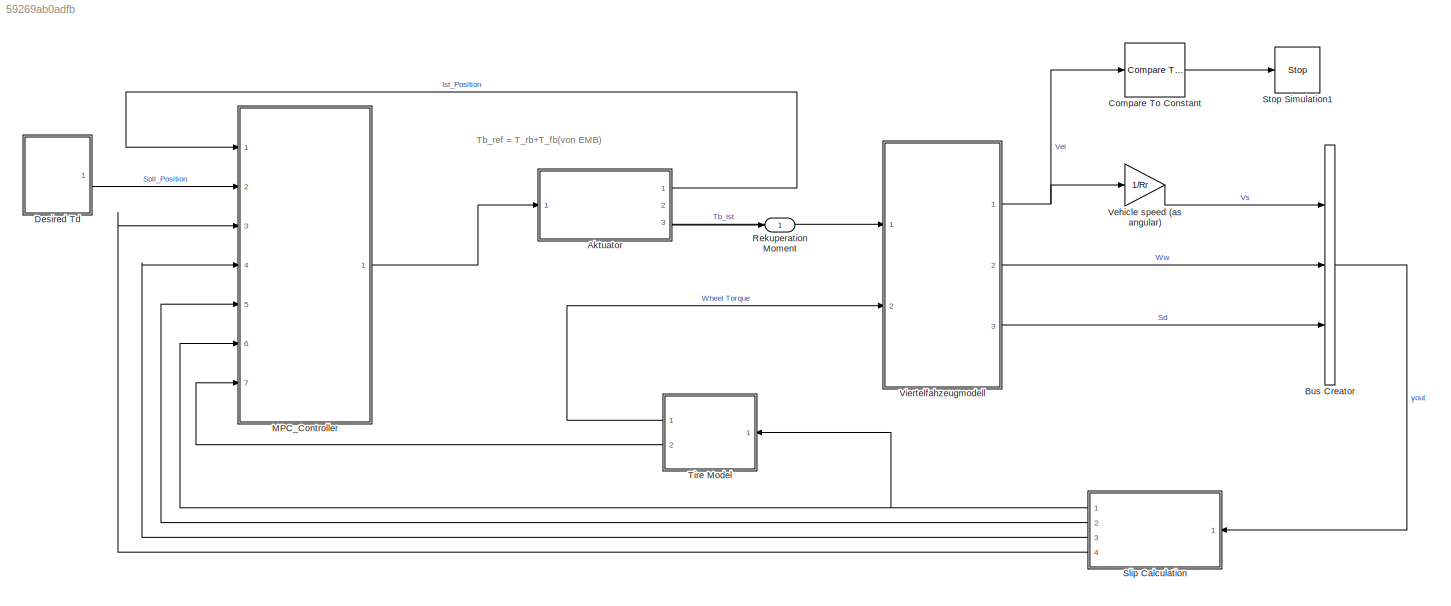
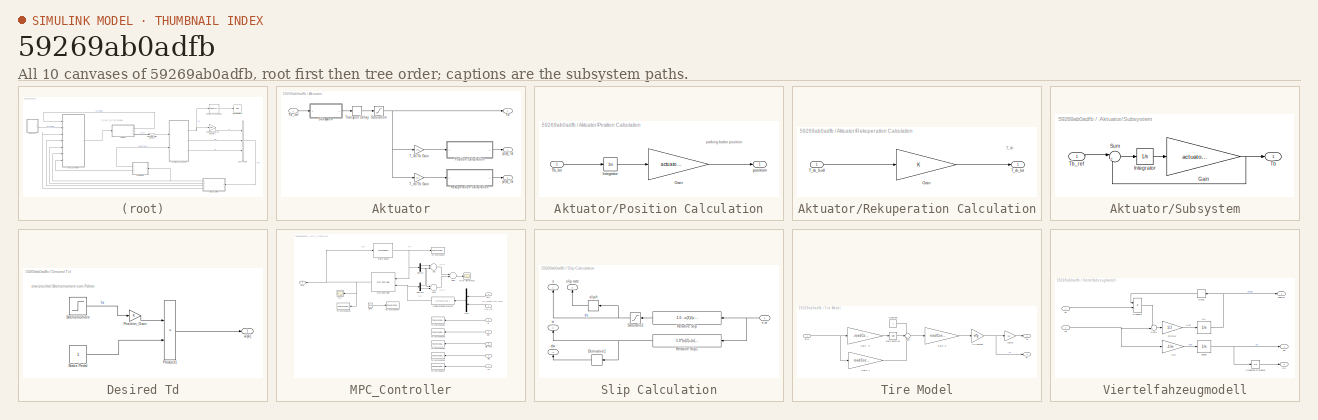
[diagram: thumbnail index - all 10 canvases of the model, root first then tree order]
MODEL slx_59269ab0adfb
KIND model
CONFIG AbsTol = auto
CONFIG FixedStep = 0.001
CONFIG MaxStep = auto
CONFIG MinStep = auto
CONFIG PostLoadFcn = , if any(exist('dsrtsu_mdlpostloadfcn', 'file') == [2, 3, 6]), try dsrtsu_mdlpostloadfcn('Execute', bdroot); catch fprintf('Error in PostLoadFcn (dsrtsu_mdlpostloadfcn) for model "%s":\n %s\n', bdroot, lasterr); end, end, \n
CONFIG RelTol = 1e-3
CONFIG SampleTimeConstraint = Unconstrained
CONFIG Solver = ode1
CONFIG SolverMode = Auto
CONFIG SolverName = ode1
CONFIG StartTime = 0.0
CONFIG StopTime = Inf
BLOCK [SubSystem] Aktuator
  MinAlgLoopOccurrences = on
  Ports = [1, 3]
  RequestExecContextInheritance = off
  TreatAsAtomicUnit = on
  Variant = off
BLOCK [SubSystem] Aktuator/Position Calculation
  Ports = [1, 1]
  RequestExecContextInheritance = off
  Variant = off
BLOCK [Outport] Aktuator/Position Calculation/ positioin
  IconDisplay = Port number
BLOCK [Gain] Aktuator/Position Calculation/Gain
  Gain = actuatorPole
  OutDataTypeStr = Inherit: Inherit via internal rule
  ParamDataTypeStr = Inherit: Inherit via internal rule
  SaturateOnIntegerOverflow = off
BLOCK [Integrator] Aktuator/Position Calculation/Integrator
  Ports = [1, 1]
BLOCK [Inport] Aktuator/Position Calculation/Tb_Ist
  IconDisplay = Port number
BLOCK [SubSystem] Aktuator/Rekuperation Calculation
  Ports = [1, 1]
  RequestExecContextInheritance = off
  Variant = off
BLOCK [Outport] Aktuator/Rekuperation Calculation/ T_rb_Ist
  IconDisplay = Port number
BLOCK [Gain] Aktuator/Rekuperation Calculation/Gain
  OutDataTypeStr = Inherit: Inherit via internal rule
  ParamDataTypeStr = Inherit: Inherit via internal rule
  SaturateOnIntegerOverflow = off
BLOCK [Inport] Aktuator/Rekuperation Calculation/T_rb_Soll
  IconDisplay = Port number
BLOCK [Saturate] Aktuator/Saturation
  InputPortMap = u0
  LowerLimit = 0
  Ports = [1, 1]
  UpperLimit = actuatorSat
BLOCK [SubSystem] Aktuator/Subsystem
  Ports = [1, 1]
  RequestExecContextInheritance = off
  Variant = off
BLOCK [Gain] Aktuator/Subsystem/Gain
  Gain = actuatorPole
  OutDataTypeStr = Inherit: Inherit via internal rule
  ParamDataTypeStr = Inherit: Inherit via internal rule
  SaturateOnIntegerOverflow = off
BLOCK [Integrator] Aktuator/Subsystem/Integrator
  Ports = [1, 1]
BLOCK [Sum] Aktuator/Subsystem/Sum
  IconShape = round
  InputSameDT = off
  Inputs = |+-
  OutDataTypeStr = Inherit: Inherit via internal rule
  Ports = [2, 1]
  SaturateOnIntegerOverflow = off
BLOCK [Outport] Aktuator/Subsystem/Tb
  IconDisplay = Port number
BLOCK [Inport] Aktuator/Subsystem/Tb_ref
  IconDisplay = Port number
BLOCK [Gain] Aktuator/T_fb//Tb Gain
  Gain = 0.8
  OutDataTypeStr = Inherit: Inherit via internal rule
  ParamDataTypeStr = Inherit: Inherit via internal rule
  SaturateOnIntegerOverflow = off
BLOCK [Gain] Aktuator/T_rb//Tb Gain
  Gain = 0.2
  OutDataTypeStr = Inherit: Inherit via internal rule
  ParamDataTypeStr = Inherit: Inherit via internal rule
  SaturateOnIntegerOverflow = off
BLOCK [Outport] Aktuator/Tb
  IconDisplay = Port number
  Port = 2
BLOCK [Inport] Aktuator/Tb_ref
  IconDisplay = Port number
BLOCK [TransportDelay] Aktuator/Transport Delay
  BufferSize = 10240
  DelayTime = actuatorDelay
  Ports = [1, 1]
BLOCK [Outport] Aktuator/y1(k)_Ist
  IconDisplay = Port number
BLOCK [Outport] Aktuator/y2(k)_Ist
  IconDisplay = Port number
  Port = 3
BLOCK [BusCreator] Bus Creator
  DisplayOption = bar
  InheritFromInputs = on
  Inputs = 3
  Ports = [3, 1]
BLOCK [Reference] Compare To Constant  REF=simulink/Logic and Bit
Operations/Compare
To Constant
  Ports = [1, 1]
  SourceBlock = simulink/Logic and Bit\nOperations/Compare\nTo Constant
  SourceType = Compare To Constant
BLOCK [SubSystem] Desired Td
  Ports = [0, 1]
  RequestExecContextInheritance = off
  Variant = off
BLOCK [Constant] Desired Td/Brake Pedal
  OutMax = [1]
  OutMin = [0]
BLOCK [Step] Desired Td/Bremsmoment
  After = Td
  SampleTime = 0
BLOCK [Gain] Desired Td/Position_Gain
  OutDataTypeStr = Inherit: Inherit via internal rule
  ParamDataTypeStr = Inherit: Inherit via internal rule
  SaturateOnIntegerOverflow = off
BLOCK [Product] Desired Td/Product1
  InputSameDT = off
  Ports = [2, 1]
  RndMeth = Floor
BLOCK [Outport] Desired Td/w(k)
  IconDisplay = Port number
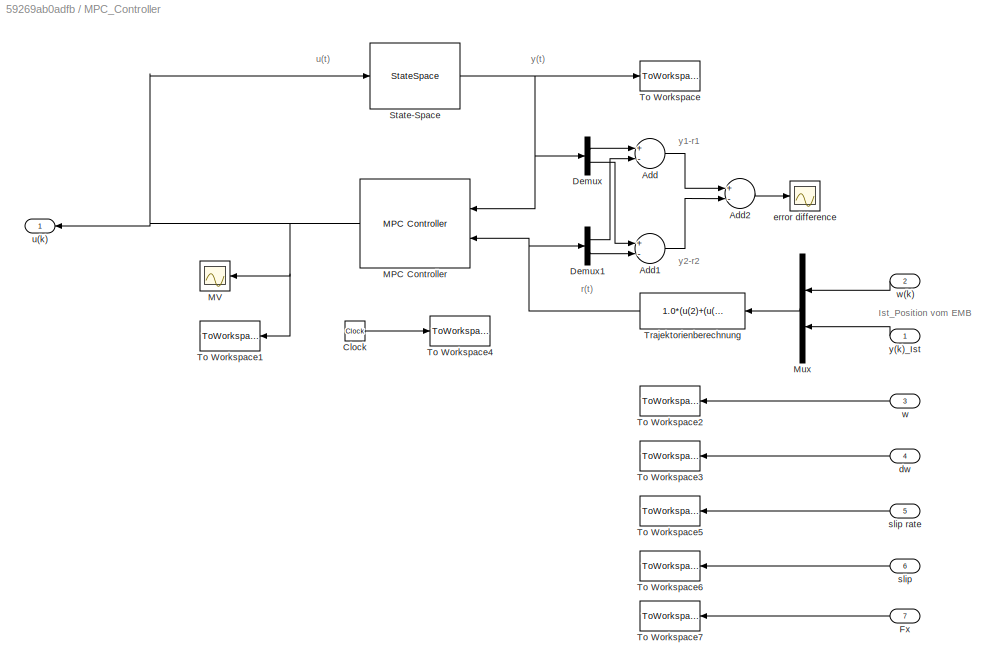
BLOCK [SubSystem] MPC_Controller
  Ports = [7, 1]
  RequestExecContextInheritance = off
  Variant = off
BLOCK [Sum] MPC_Controller/Add
  InputSameDT = off
  Inputs = +-
  OutDataTypeStr = Inherit: Inherit via internal rule
  Ports = [2, 1]
  SaturateOnIntegerOverflow = off
BLOCK [Sum] MPC_Controller/Add1
  InputSameDT = off
  Inputs = +-
  OutDataTypeStr = Inherit: Inherit via internal rule
  Ports = [2, 1]
  SaturateOnIntegerOverflow = off
BLOCK [Sum] MPC_Controller/Add2
  InputSameDT = off
  Inputs = +-
  OutDataTypeStr = Inherit: Inherit via internal rule
  Ports = [2, 1]
  SaturateOnIntegerOverflow = off
BLOCK [Clock] MPC_Controller/Clock
BLOCK [Demux] MPC_Controller/Demux
  DisplayOption = bar
  Outputs = 2
  Ports = [1, 2]
BLOCK [Demux] MPC_Controller/Demux1
  DisplayOption = bar
  Outputs = 2
  Ports = [1, 2]
BLOCK [Inport] MPC_Controller/Fx
  IconDisplay = Port number
  Port = 7
BLOCK [Reference] MPC_Controller/MPC Controller  REF=mpclib/MPC Controller  (lib defined in mdl_ae329e0e0455)
  Ports = [2, 1]
  SourceBlock = mpclib/MPC Controller
  SourceType = MPC
BLOCK [Scope] MPC_Controller/MV
  Ports = [1]
  ScopeSpecificationString = Simulink.scopes.TimeScopeBlockCfg('CurrentConfiguration', extmgr.ConfigurationSet(extmgr.Configuration('Core','General UI',true),extmgr.Configuration('Core','Source UI',true),extmgr.Configuration('Sources','WiredSimulink',true,'DataLoggingSaveFormat','Structure','DataLoggingLimitDataPoints',true,'DataLoggingDecimation','1','DataLoggingDecimateData',true,'DataLoggingVariableName','ScopeData1'),extm...<+1686ch>
BLOCK [Mux] MPC_Controller/Mux
  DisplayOption = bar
  Inputs = 2
  Ports = [2, 1]
BLOCK [StateSpace] MPC_Controller/State-Space
  A = A
  B = B
  C = C
  D = D
  Ports = [1, 1]
  X0 = [0 0 0 0 0 0 0]'
BLOCK [ToWorkspace] MPC_Controller/To Workspace
  MaxDataPoints = Inf
  Ports = [1]
  SampleTime = -1
  VariableName = y
BLOCK [ToWorkspace] MPC_Controller/To Workspace1
  MaxDataPoints = Inf
  Ports = [1]
  SampleTime = -1
  VariableName = u
BLOCK [ToWorkspace] MPC_Controller/To Workspace2
  MaxDataPoints = Inf
  Ports = [1]
  SampleTime = -1
  VariableName = w
BLOCK [ToWorkspace] MPC_Controller/To Workspace3
  MaxDataPoints = Inf
  Ports = [1]
  SampleTime = -1
  VariableName = dw
BLOCK [ToWorkspace] MPC_Controller/To Workspace4
  MaxDataPoints = Inf
  Ports = [1]
  SampleTime = -1
  VariableName = t
BLOCK [ToWorkspace] MPC_Controller/To Workspace5
  MaxDataPoints = Inf
  Ports = [1]
  SampleTime = -1
  VariableName = lamda
BLOCK [ToWorkspace] MPC_Controller/To Workspace6
  MaxDataPoints = Inf
  Ports = [1]
  SampleTime = -1
  VariableName = s
BLOCK [ToWorkspace] MPC_Controller/To Workspace7
  MaxDataPoints = Inf
  Ports = [1]
  SampleTime = -1
  VariableName = Fx
BLOCK [Fcn] MPC_Controller/Trajektorienberechnung
  Expr = 1.0*(u(2)+(u(2)==0)*eps)
BLOCK [Inport] MPC_Controller/dw
  IconDisplay = Port number
  Port = 4
BLOCK [Scope] MPC_Controller/error difference
  Ports = [1]
  ScopeSpecificationString = Simulink.scopes.TimeScopeBlockCfg('CurrentConfiguration', extmgr.ConfigurationSet(extmgr.Configuration('Core','General UI',true),extmgr.Configuration('Core','Source UI',true),extmgr.Configuration('Sources','WiredSimulink',true,'DataLoggingSaveFormat','Structure','DataLoggingLimitDataPoints',true,'DataLoggingDecimation','1','DataLoggingDecimateData',true),extmgr.Configuration('Visuals','Time Domain...<+1651ch>
BLOCK [Inport] MPC_Controller/slip
  IconDisplay = Port number
  Port = 6
BLOCK [Inport] MPC_Controller/slip rate
  IconDisplay = Port number
  Port = 5
BLOCK [Outport] MPC_Controller/u(k)
  IconDisplay = Port number
BLOCK [Inport] MPC_Controller/w
  IconDisplay = Port number
  Port = 3
BLOCK [Inport] MPC_Controller/w(k)
  IconDisplay = Port number
  Port = 2
BLOCK [Inport] MPC_Controller/y(k)_Ist
  IconDisplay = Port number
BLOCK [Outport] Rekuperation Moment
  IconDisplay = Port number
BLOCK [SubSystem] Slip Calculation
  Ports = [1, 4]
  RequestExecContextInheritance = off
  Variant = off
BLOCK [Derivative] Slip Calculation/Derivative1
BLOCK [Fcn] Slip Calculation/Relative Slip
  Expr = 1.0 - u(2)/(u(1)+(u(1)==0)*eps)
BLOCK [Fcn] Slip Calculation/Relative Slip1
  Expr = 1.0*(u(2)+(u(2)==0)*eps)
BLOCK [Saturate] Slip Calculation/Saturatio2
  InputPortMap = u0
  LowerLimit = 0
  Ports = [1, 1]
  UpperLimit = 1
BLOCK [Outport] Slip Calculation/dw
  IconDisplay = Port number
  Port = 4
BLOCK [Outport] Slip Calculation/s
  IconDisplay = Port number
BLOCK [Outport] Slip Calculation/slip rate
  IconDisplay = Port number
  Port = 2
BLOCK [Derivative] Slip Calculation/slip//t
BLOCK [Inport] Slip Calculation/v,w
  IconDisplay = Port number
BLOCK [Outport] Slip Calculation/w
  IconDisplay = Port number
  Port = 3
BLOCK [Stop] Stop Simulation1
BLOCK [SubSystem] Tire Model
  Ports = [1, 2]
  RequestExecContextInheritance = off
  Variant = off
BLOCK [Gain] Tire Model/1//4 Weight
  Gain = m*g
  OutDataTypeStr = Inherit: Inherit via internal rule
  ParamDataTypeStr = Inherit: Inherit via internal rule
  SaturateOnIntegerOverflow = off
BLOCK [Constant] Tire Model/Constant
BLOCK [Outport] Tire Model/Fx
  IconDisplay = Port number
  Port = 2
BLOCK [Gain] Tire Model/Gain: -b
  Gain = -roadCoeffs(2)
BLOCK [Gain] Tire Model/Gain: a
  Gain = roadCoeffs(1)
BLOCK [Gain] Tire Model/Gain: c
  Gain = roadCoeffs(3)
BLOCK [Math] Tire Model/Math Function
  Ports = [1, 1]
BLOCK [Inport] Tire Model/Slip
  IconDisplay = Port number
BLOCK [Sum] Tire Model/Sum
  IconShape = round
  InputSameDT = off
  Inputs = +--
  OutDataTypeStr = Inherit: Inherit via internal rule
  Ports = [3, 1]
  SaturateOnIntegerOverflow = off
BLOCK [Outport] Tire Model/Tw
  IconDisplay = Port number
BLOCK [Gain] Tire Model/radius
  Gain = Rr
BLOCK [Gain] Vehicle speed (as angular)  
  Gain = 1/Rr
  OutDataTypeStr = Inherit: Inherit via internal rule
  ParamDataTypeStr = Inherit: Inherit via internal rule
  SaturateOnIntegerOverflow = off
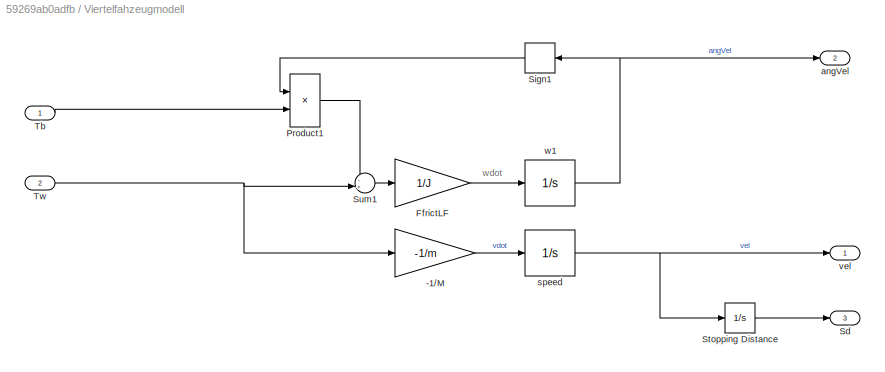
BLOCK [SubSystem] Viertelfahzeugmodell
  Ports = [2, 3]
  RequestExecContextInheritance = off
  Variant = off
BLOCK [Gain] Viertelfahzeugmodell/-1//M
  Gain = -1/m
BLOCK [Gain] Viertelfahzeugmodell/FfrictLF
  Gain = 1/J
BLOCK [Product] Viertelfahzeugmodell/Product1
  InputSameDT = off
  Ports = [2, 1]
  RndMeth = Floor
BLOCK [Outport] Viertelfahzeugmodell/Sd
  IconDisplay = Port number
  Port = 3
BLOCK [Signum] Viertelfahzeugmodell/Sign1
BLOCK [Integrator] Viertelfahzeugmodell/Stopping Distance
  Ports = [1, 1]
BLOCK [Sum] Viertelfahzeugmodell/Sum1
  IconShape = round
  InputSameDT = off
  Inputs = -+|
  OutDataTypeStr = Inherit: Inherit via internal rule
  Ports = [2, 1]
  SaturateOnIntegerOverflow = off
BLOCK [Inport] Viertelfahzeugmodell/Tb
  IconDisplay = Port number
BLOCK [Inport] Viertelfahzeugmodell/Tw
  IconDisplay = Port number
  Port = 2
BLOCK [Outport] Viertelfahzeugmodell/angVel
  IconDisplay = Port number
  Port = 2
BLOCK [Integrator] Viertelfahzeugmodell/speed
  InitialCondition = v0
  LimitOutput = on
  LowerSaturationLimit = 0
  Ports = [1, 1]
  UpperSaturationLimit = 1000
BLOCK [Outport] Viertelfahzeugmodell/vel
  IconDisplay = Port number
BLOCK [Integrator] Viertelfahzeugmodell/w1
  LimitOutput = on
  LowerSaturationLimit = 0
  Ports = [1, 1]
  UpperSaturationLimit = 1500
ANNOTATION (root): Tb_ref = T_rb+T_fb(von EMB)
ANNOTATION Aktuator/Position Calculation: parking barke position
ANNOTATION Aktuator/Rekuperation Calculation: T_rb
ANNOTATION Desired Td: erwünschtet Bremsmoment vom Fahrer
ANNOTATION MPC_Controller: Ist_Position vom EMB
ANNOTATION MPC_Controller: r(t)
ANNOTATION MPC_Controller: u(t)
ANNOTATION MPC_Controller: y(t)
ANNOTATION MPC_Controller: y1-r1
ANNOTATION MPC_Controller: y2-r2
ANNOTATION Viertelfahzeugmodell: wdot
LINE Aktuator/Position Calculation/Gain:1 -> Aktuator/Position Calculation/ positioin:1
LINE Aktuator/Position Calculation/Integrator:1 -> Aktuator/Position Calculation/Gain:1
LINE Aktuator/Position Calculation/Tb_Ist:1 -> Aktuator/Position Calculation/Integrator:1
LINE Aktuator/Position Calculation:1 -> Aktuator/y1(k)_Ist:1
LINE Aktuator/Rekuperation Calculation/Gain:1 -> Aktuator/Rekuperation Calculation/ T_rb_Ist:1
LINE Aktuator/Rekuperation Calculation/T_rb_Soll:1 -> Aktuator/Rekuperation Calculation/Gain:1
LINE Aktuator/Rekuperation Calculation:1 -> Aktuator/y2(k)_Ist:1
NET Aktuator/Saturation:1 -> Aktuator/T_fb//Tb Gain:1, Aktuator/T_rb//Tb Gain:1, Aktuator/Tb:1
NET Aktuator/Subsystem/Gain:1 -> Aktuator/Subsystem/Sum:2, Aktuator/Subsystem/Tb:1
LINE Aktuator/Subsystem/Integrator:1 -> Aktuator/Subsystem/Gain:1
LINE Aktuator/Subsystem/Sum:1 -> Aktuator/Subsystem/Integrator:1
LINE Aktuator/Subsystem/Tb_ref:1 -> Aktuator/Subsystem/Sum:1
LINE Aktuator/Subsystem:1 -> Aktuator/Transport Delay:1
LINE Aktuator/T_fb//Tb Gain:1 -> Aktuator/Position Calculation:1
LINE Aktuator/T_rb//Tb Gain:1 -> Aktuator/Rekuperation Calculation:1
LINE Aktuator/Tb_ref:1 -> Aktuator/Subsystem:1
LINE Aktuator/Transport Delay:1 -> Aktuator/Saturation:1
LINE Aktuator:1 -> MPC_Controller:1
LINE Aktuator:2 -> Viertelfahzeugmodell:1
LINE Aktuator:3 -> Rekuperation Moment:1
LINE Bus Creator:1 -> Slip Calculation:1
LINE Compare To Constant:1 -> Stop Simulation1:1
LINE Desired Td/Brake Pedal:1 -> Desired Td/Product1:2
LINE Desired Td/Bremsmoment:1 -> Desired Td/Position_Gain:1
LINE Desired Td/Position_Gain:1 -> Desired Td/Product1:1
LINE Desired Td/Product1:1 -> Desired Td/w(k):1
LINE Desired Td:1 -> MPC_Controller:2
LINE MPC_Controller/Add1:1 -> MPC_Controller/Add2:2
LINE MPC_Controller/Add2:1 -> MPC_Controller/error difference:1
LINE MPC_Controller/Add:1 -> MPC_Controller/Add2:1
LINE MPC_Controller/Clock:1 -> MPC_Controller/To Workspace4:1
LINE MPC_Controller/Demux1:1 -> MPC_Controller/Add:2
LINE MPC_Controller/Demux1:2 -> MPC_Controller/Add1:2
LINE MPC_Controller/Demux:1 -> MPC_Controller/Add:1
LINE MPC_Controller/Demux:2 -> MPC_Controller/Add1:1
LINE MPC_Controller/Fx:1 -> MPC_Controller/To Workspace7:1
NET MPC_Controller/MPC Controller:1 -> MPC_Controller/MV:1, MPC_Controller/State-Space:1, MPC_Controller/To Workspace1:1, MPC_Controller/u(k):1
LINE MPC_Controller/Mux:1 -> MPC_Controller/Trajektorienberechnung:1
NET MPC_Controller/State-Space:1 -> MPC_Controller/Demux:1, MPC_Controller/MPC Controller:1, MPC_Controller/To Workspace:1
NET MPC_Controller/Trajektorienberechnung:1 -> MPC_Controller/Demux1:1, MPC_Controller/MPC Controller:2
LINE MPC_Controller/dw:1 -> MPC_Controller/To Workspace3:1
LINE MPC_Controller/slip rate:1 -> MPC_Controller/To Workspace5:1
LINE MPC_Controller/slip:1 -> MPC_Controller/To Workspace6:1
LINE MPC_Controller/w(k):1 -> MPC_Controller/Mux:1
LINE MPC_Controller/w:1 -> MPC_Controller/To Workspace2:1
LINE MPC_Controller/y(k)_Ist:1 -> MPC_Controller/Mux:2
LINE MPC_Controller:1 -> Aktuator:1
LINE Slip Calculation/Derivative1:1 -> Slip Calculation/dw:1
NET Slip Calculation/Relative Slip1:1 -> Slip Calculation/Derivative1:1, Slip Calculation/w:1
LINE Slip Calculation/Relative Slip:1 -> Slip Calculation/Saturatio2:1
NET Slip Calculation/Saturatio2:1 -> Slip Calculation/s:1, Slip Calculation/slip//t:1
LINE Slip Calculation/slip//t:1 -> Slip Calculation/slip rate:1
NET Slip Calculation/v,w:1 -> Slip Calculation/Relative Slip1:1, Slip Calculation/Relative Slip:1
NET Slip Calculation:1 -> MPC_Controller:6, Tire Model:1
LINE Slip Calculation:2 -> MPC_Controller:5
LINE Slip Calculation:3 -> MPC_Controller:4
LINE Slip Calculation:4 -> MPC_Controller:3
NET Tire Model/1//4 Weight:1 -> Tire Model/Fx:1, Tire Model/radius:1
LINE Tire Model/Constant:1 -> Tire Model/Sum:1
LINE Tire Model/Gain: -b:1 -> Tire Model/Math Function:1
LINE Tire Model/Gain: a:1 -> Tire Model/1//4 Weight:1
LINE Tire Model/Gain: c:1 -> Tire Model/Sum:3
LINE Tire Model/Math Function:1 -> Tire Model/Sum:2
NET Tire Model/Slip:1 -> Tire Model/Gain: -b:1, Tire Model/Gain: c:1
LINE Tire Model/Sum:1 -> Tire Model/Gain: a:1
LINE Tire Model/radius:1 -> Tire Model/Tw:1
LINE Tire Model:1 -> Viertelfahzeugmodell:2
LINE Tire Model:2 -> MPC_Controller:7
LINE Vehicle speed (as angular)  :1 -> Bus Creator:1
LINE Viertelfahzeugmodell/-1//M:1 -> Viertelfahzeugmodell/speed:1
LINE Viertelfahzeugmodell/FfrictLF:1 -> Viertelfahzeugmodell/w1:1
LINE Viertelfahzeugmodell/Product1:1 -> Viertelfahzeugmodell/Sum1:1
LINE Viertelfahzeugmodell/Sign1:1 -> Viertelfahzeugmodell/Product1:1
LINE Viertelfahzeugmodell/Stopping Distance:1 -> Viertelfahzeugmodell/Sd:1
LINE Viertelfahzeugmodell/Sum1:1 -> Viertelfahzeugmodell/FfrictLF:1
LINE Viertelfahzeugmodell/Tb:1 -> Viertelfahzeugmodell/Product1:2
NET Viertelfahzeugmodell/Tw:1 -> Viertelfahzeugmodell/-1//M:1, Viertelfahzeugmodell/Sum1:2
NET Viertelfahzeugmodell/speed:1 -> Viertelfahzeugmodell/Stopping Distance:1, Viertelfahzeugmodell/vel:1
NET Viertelfahzeugmodell/w1:1 -> Viertelfahzeugmodell/Sign1:1, Viertelfahzeugmodell/angVel:1
NET Viertelfahzeugmodell:1 -> Compare To Constant:1, Vehicle speed (as angular)  :1
LINE Viertelfahzeugmodell:2 -> Bus Creator:2
LINE Viertelfahzeugmodell:3 -> Bus Creator:3
note: NET lines group one-source signal fan-out (src -> all destinations, sorted); 1:1 wires keep LINE
